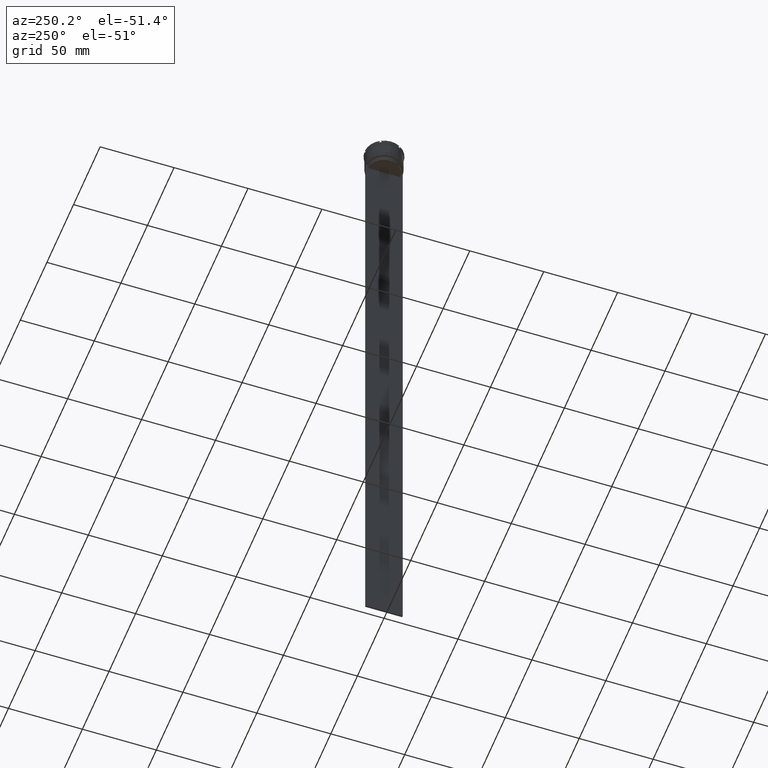
[diagram: clean part render]
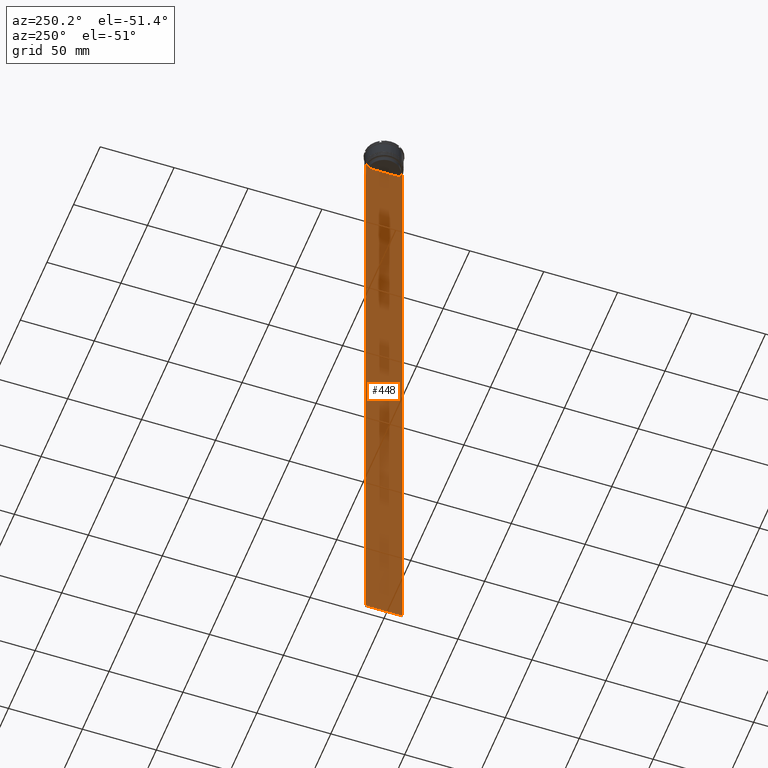
[diagram: same view with one face highlighted and labeled with its STEP entity id]
A machine part, auxiliary view. The second image highlights one B-rep face of the part: STEP entity #448.
In plain terms, the highlighted planar face has unit normal (-1, 0, 0).
Its self-contained STEP definition (entity closure, byte-faithful):
#38 = CARTESIAN_POINT ( 'NONE',  ( -0.5000000000000000000, 12.50000000000000711, 11.01999200639360765 ) ) ;
#43 = CARTESIAN_POINT ( 'NONE',  ( -0.5000000000000000000, -12.49999999999999289, 11.01999200639360765 ) ) ;
#57 = EDGE_LOOP ( 'NONE', ( #287, #1024, #1453, #2427, #1048, #2368, #1233, #320, #405, #1241, #2699, #466 ) ) ;
#69 = DIRECTION ( 'NONE',  ( 0.000000000000000000, 0.000000000000000000, -1.000000000000000000 ) ) ;
#80 = CARTESIAN_POINT ( 'NONE',  ( -0.5000000000000000000, -10.88852607105296322, -14.50000000000000000 ) ) ;
#98 = VERTEX_POINT ( 'NONE', #470 ) ;
#99 = VECTOR ( 'NONE', #1466, 1000.000000000000000 ) ;
#159 = B_SPLINE_CURVE_WITH_KNOTS ( 'NONE', 3,
 ( #80, #2255, #2728, #1589 ),
 .UNSPECIFIED., .F., .F.,
 ( 4, 4 ),
 ( 0.05041323384703226551, 0.05112713601261605068 ),
 .UNSPECIFIED. ) ;
#180 = LINE ( 'NONE', #644, #2693 ) ;
#183 = LINE ( 'NONE', #2623, #618 ) ;
#190 = VERTEX_POINT ( 'NONE', #1904 ) ;
#204 = CARTESIAN_POINT ( 'NONE',  ( -0.5000000000000000000, -12.49999999999999289, -14.00000000000000178 ) ) ;
#214 = CARTESIAN_POINT ( 'NONE',  ( -0.5000000000000000000, 11.05536450345590538, -14.33333719074559376 ) ) ;
#224 = PLANE ( 'NONE',  #1522 ) ;
#241 = VECTOR ( 'NONE', #2376, 1000.000000000000000 ) ;
#265 = LINE ( 'NONE', #38, #2461 ) ;
#287 = ORIENTED_EDGE ( 'NONE', *, *, #1590, .F. ) ;
#289 = CARTESIAN_POINT ( 'NONE',  ( -0.5000000000000000000, -10.88852607105296322, 0.000000000000000000 ) ) ;
#320 = ORIENTED_EDGE ( 'NONE', *, *, #1557, .F. ) ;
#360 = EDGE_CURVE ( 'NONE', #1455, #2605, #180, .T. ) ;
#405 = ORIENTED_EDGE ( 'NONE', *, *, #2353, .F. ) ;
#448 = ADVANCED_FACE ( 'NONE', ( #631 ), #224, .T. ) ;
#451 = DIRECTION ( 'NONE',  ( 0.000000000000000000, -1.000000000000000000, 0.000000000000000000 ) ) ;
#466 = ORIENTED_EDGE ( 'NONE', *, *, #681, .F. ) ;
#470 = CARTESIAN_POINT ( 'NONE',  ( -0.5000000000000000000, -10.88852607105296322, -14.50000000000000000 ) ) ;
#503 = EDGE_CURVE ( 'NONE', #1970, #2736, #1164, .T. ) ;
#547 = CARTESIAN_POINT ( 'NONE',  ( -0.5000000000000000000, 12.50000000000000711, -14.00000000000000178 ) ) ;
#590 = CARTESIAN_POINT ( 'NONE',  ( -0.5000000000000000000, 10.88852607105296322, -14.50000000000000000 ) ) ;
#610 = VECTOR ( 'NONE', #1746, 1000.000000000000000 ) ;
#618 = VECTOR ( 'NONE', #1126, 1000.000000000000000 ) ;
#631 = FACE_OUTER_BOUND ( 'NONE', #57, .T. ) ;
#644 = CARTESIAN_POINT ( 'NONE',  ( -0.5000000000000000000, 10.90000000000000213, -17.00000000000000000 ) ) ;
#646 = CARTESIAN_POINT ( 'NONE',  ( -0.5000000000000000000, -12.49999999999999289, -464.0000000000000000 ) ) ;
#660 = DIRECTION ( 'NONE',  ( 0.000000000000000000, 0.000000000000000000, 1.000000000000000000 ) ) ;
#681 = EDGE_CURVE ( 'NONE', #190, #1455, #2316, .T. ) ;
#772 = DIRECTION ( 'NONE',  ( 0.000000000000000000, 0.000000000000000000, -1.000000000000000000 ) ) ;
#823 = CARTESIAN_POINT ( 'NONE',  ( -0.5000000000000000000, 11.22219891375843304, -14.16667035472756808 ) ) ;
#913 = VERTEX_POINT ( 'NONE', #1783 ) ;
#937 = CARTESIAN_POINT ( 'NONE',  ( -0.5000000000000000000, -12.38991525394746773, -14.00000000000000178 ) ) ;
#1024 = ORIENTED_EDGE ( 'NONE', *, *, #2715, .F. ) ;
#1048 = ORIENTED_EDGE ( 'NONE', *, *, #1253, .F. ) ;
#1126 = DIRECTION ( 'NONE',  ( 0.000000000000000000, -1.000000000000000000, 0.000000000000000000 ) ) ;
#1137 = EDGE_CURVE ( 'NONE', #2819, #1970, #1703, .T. ) ;
#1164 = LINE ( 'NONE', #43, #1892 ) ;
#1233 = ORIENTED_EDGE ( 'NONE', *, *, #1137, .F. ) ;
#1241 = ORIENTED_EDGE ( 'NONE', *, *, #2859, .F. ) ;
#1253 = EDGE_CURVE ( 'NONE', #2736, #2079, #1487, .T. ) ;
#1340 = EDGE_CURVE ( 'NONE', #1543, #2079, #265, .T. ) ;
#1348 = VECTOR ( 'NONE', #451, 1000.000000000000000 ) ;
#1453 = ORIENTED_EDGE ( 'NONE', *, *, #1660, .F. ) ;
#1455 = VERTEX_POINT ( 'NONE', #1656 ) ;
#1466 = DIRECTION ( 'NONE',  ( 0.000000000000000000, -1.000000000000000000, 0.000000000000000000 ) ) ;
#1487 = LINE ( 'NONE', #2866, #241 ) ;
#1499 = CARTESIAN_POINT ( 'NONE',  ( -0.5000000000000000000, 11.38902980942626719, -14.00000000000000178 ) ) ;
#1522 = AXIS2_PLACEMENT_3D ( 'NONE', #1754, #1565, #660 ) ;
#1543 = VERTEX_POINT ( 'NONE', #547 ) ;
#1557 = EDGE_CURVE ( 'NONE', #2776, #2819, #1847, .T. ) ;
#1565 = DIRECTION ( 'NONE',  ( -1.000000000000000000, 0.000000000000000000, 0.000000000000000000 ) ) ;
#1589 = CARTESIAN_POINT ( 'NONE',  ( -0.5000000000000000000, -11.38902980942626719, -14.00000000000000178 ) ) ;
#1590 = EDGE_CURVE ( 'NONE', #913, #190, #2550, .T. ) ;
#1600 = VERTEX_POINT ( 'NONE', #1924 ) ;
#1656 = CARTESIAN_POINT ( 'NONE',  ( -0.5000000000000000000, 10.88852607105296144, -17.00000000000000000 ) ) ;
#1660 = EDGE_CURVE ( 'NONE', #1543, #1600, #2396, .T. ) ;
#1703 = LINE ( 'NONE', #2659, #1348 ) ;
#1746 = DIRECTION ( 'NONE',  ( 0.000000000000000000, -1.000000000000000000, 0.000000000000000000 ) ) ;
#1754 = CARTESIAN_POINT ( 'NONE',  ( -0.5000000000000000000, -12.49999999999999289, 11.01999200639360765 ) ) ;
#1783 = CARTESIAN_POINT ( 'NONE',  ( -0.5000000000000000000, 11.38902980942626719, -14.00000000000000178 ) ) ;
#1806 = VECTOR ( 'NONE', #772, 1000.000000000000000 ) ;
#1847 = LINE ( 'NONE', #2862, #99 ) ;
#1854 = VECTOR ( 'NONE', #2050, 1000.000000000000000 ) ;
#1892 = VECTOR ( 'NONE', #2472, 1000.000000000000000 ) ;
#1904 = CARTESIAN_POINT ( 'NONE',  ( -0.5000000000000000000, 10.88852607105296322, -14.50000000000000000 ) ) ;
#1924 = CARTESIAN_POINT ( 'NONE',  ( -0.5000000000000000000, 12.38991525394746773, -14.00000000000000178 ) ) ;
#1970 = VERTEX_POINT ( 'NONE', #2146 ) ;
#2050 = DIRECTION ( 'NONE',  ( -0.000000000000000000, -0.000000000000000000, 1.000000000000000000 ) ) ;
#2079 = VERTEX_POINT ( 'NONE', #2292 ) ;
#2146 = CARTESIAN_POINT ( 'NONE',  ( -0.5000000000000000000, -12.49999999999999289, -14.00000000000000178 ) ) ;
#2251 = CARTESIAN_POINT ( 'NONE',  ( -0.5000000000000000000, -11.38902980942626719, -14.00000000000000178 ) ) ;
#2255 = CARTESIAN_POINT ( 'NONE',  ( -0.5000000000000000000, -11.05536450423839234, -14.33333718996393102 ) ) ;
#2263 = LINE ( 'NONE', #289, #1854 ) ;
#2292 = CARTESIAN_POINT ( 'NONE',  ( -0.5000000000000000000, 12.50000000000000711, -464.0000000000000000 ) ) ;
#2316 = LINE ( 'NONE', #2793, #1806 ) ;
#2353 = EDGE_CURVE ( 'NONE', #98, #2776, #159, .T. ) ;
#2368 = ORIENTED_EDGE ( 'NONE', *, *, #503, .F. ) ;
#2376 = DIRECTION ( 'NONE',  ( 0.000000000000000000, 1.000000000000000000, 0.000000000000000000 ) ) ;
#2396 = LINE ( 'NONE', #204, #610 ) ;
#2427 = ORIENTED_EDGE ( 'NONE', *, *, #1340, .T. ) ;
#2461 = VECTOR ( 'NONE', #69, 1000.000000000000000 ) ;
#2472 = DIRECTION ( 'NONE',  ( 0.000000000000000000, 0.000000000000000000, -1.000000000000000000 ) ) ;
#2550 = B_SPLINE_CURVE_WITH_KNOTS ( 'NONE', 3,
 ( #1499, #823, #214, #590 ),
 .UNSPECIFIED., .F., .F.,
 ( 4, 4 ),
 ( 0.01935560801904634073, 0.02006307108468586772 ),
 .UNSPECIFIED. ) ;
#2605 = VERTEX_POINT ( 'NONE', #2772 ) ;
#2623 = CARTESIAN_POINT ( 'NONE',  ( -0.5000000000000000000, -12.49999999999999289, -14.00000000000000178 ) ) ;
#2635 = DIRECTION ( 'NONE',  ( 0.000000000000000000, -1.000000000000000000, 0.000000000000000000 ) ) ;
#2659 = CARTESIAN_POINT ( 'NONE',  ( -0.5000000000000000000, -12.49999999999999289, -14.00000000000000178 ) ) ;
#2693 = VECTOR ( 'NONE', #2635, 1000.000000000000000 ) ;
#2699 = ORIENTED_EDGE ( 'NONE', *, *, #360, .F. ) ;
#2715 = EDGE_CURVE ( 'NONE', #1600, #913, #183, .T. ) ;
#2728 = CARTESIAN_POINT ( 'NONE',  ( -0.5000000000000000000, -11.22219891450652973, -14.16667035398018903 ) ) ;
#2736 = VERTEX_POINT ( 'NONE', #646 ) ;
#2772 = CARTESIAN_POINT ( 'NONE',  ( -0.5000000000000000000, -10.88852607105296144, -17.00000000000000000 ) ) ;
#2776 = VERTEX_POINT ( 'NONE', #2251 ) ;
#2793 = CARTESIAN_POINT ( 'NONE',  ( -0.5000000000000000000, 10.88852607105296322, 0.000000000000000000 ) ) ;
#2819 = VERTEX_POINT ( 'NONE', #937 ) ;
#2859 = EDGE_CURVE ( 'NONE', #2605, #98, #2263, .T. ) ;
#2862 = CARTESIAN_POINT ( 'NONE',  ( -0.5000000000000000000, -12.49999999999999289, -14.00000000000000178 ) ) ;
#2866 = CARTESIAN_POINT ( 'NONE',  ( -0.5000000000000000000, -12.49999999999999289, -464.0000000000000000 ) ) ;